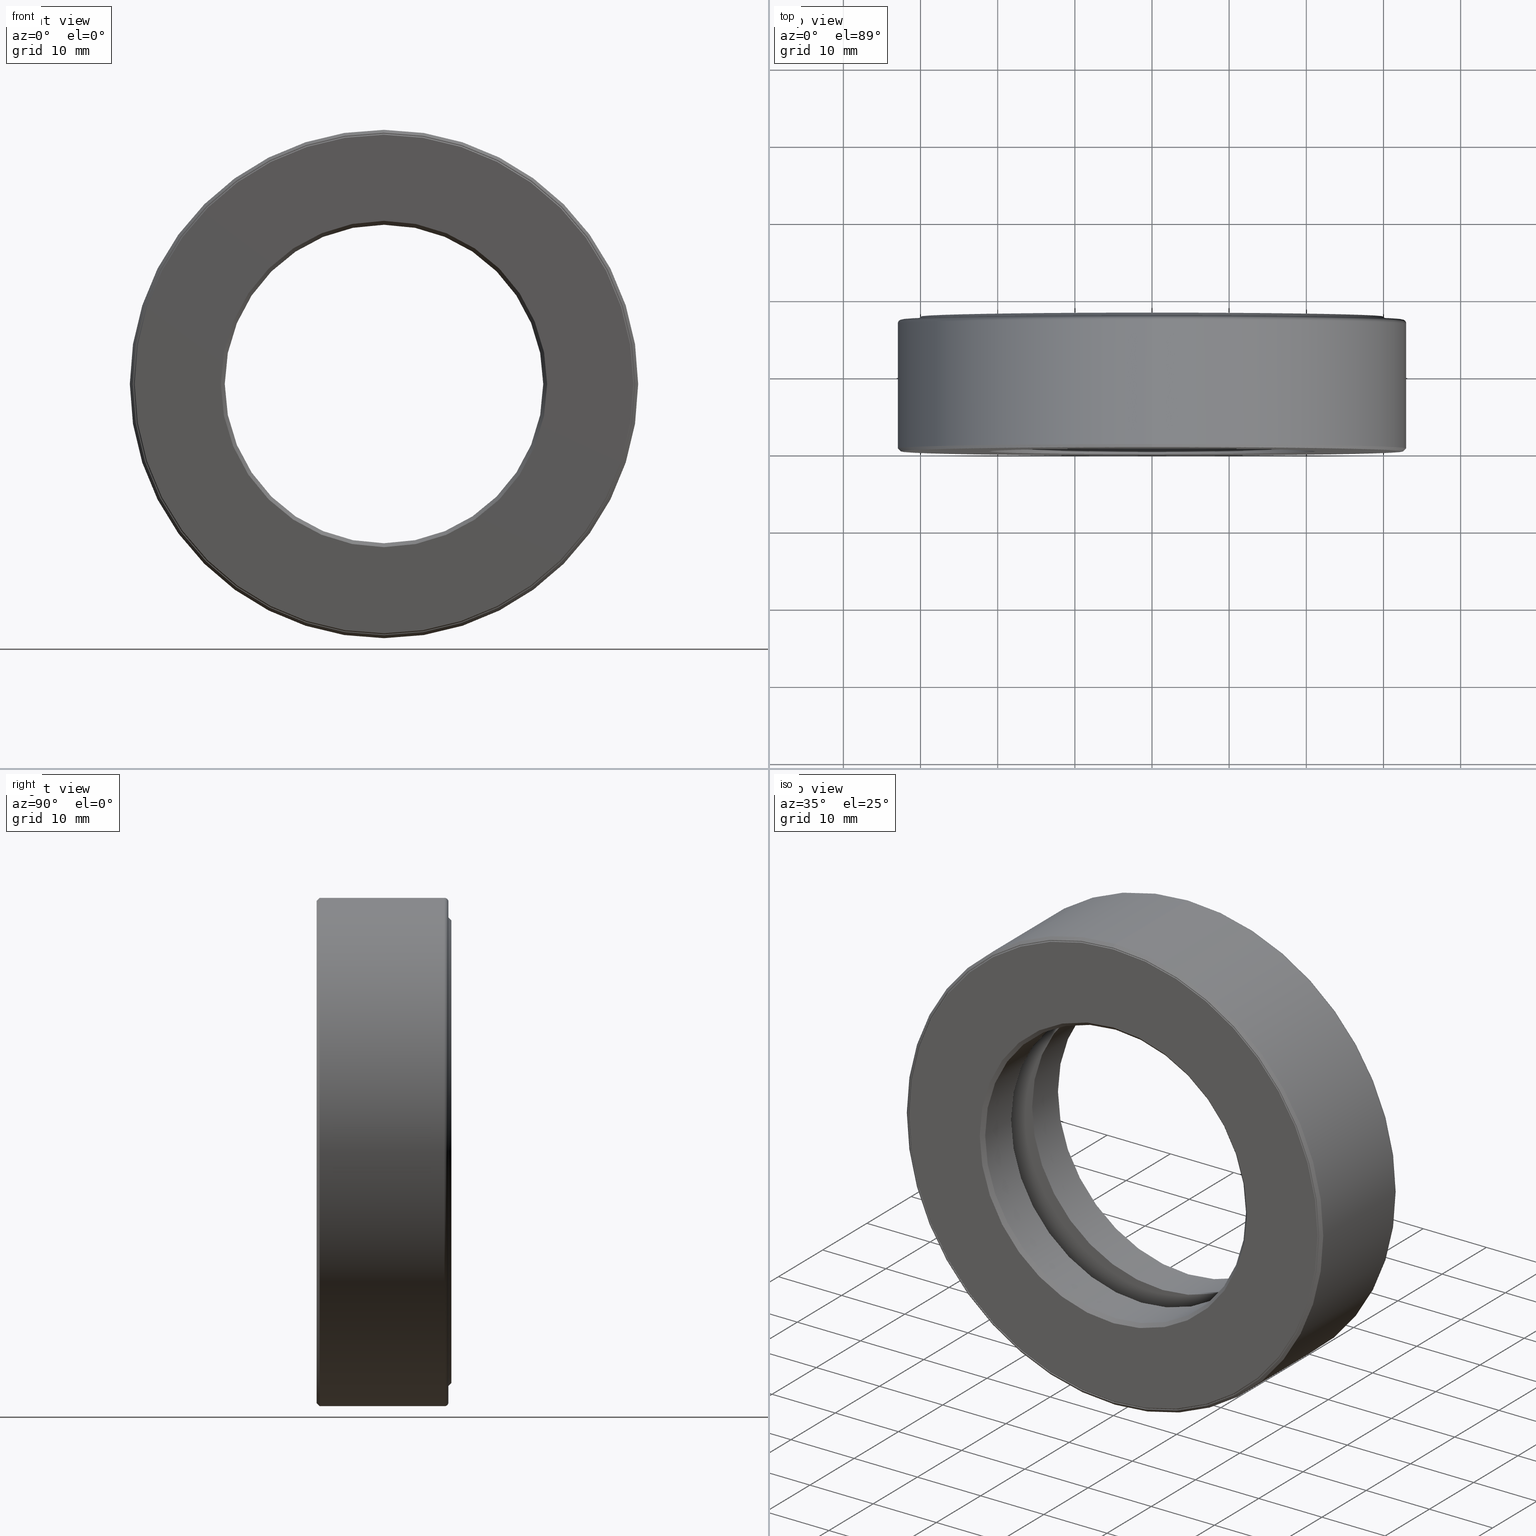
[diagram: canonical four-view strip — front | top / right | iso, engineering-drawing reading convention]
A machine part, canonical four-view strip (front | top / right | iso — engineering-drawing reading convention). The complete STEP part file that produces these views, byte-faithful:
ISO-10303-21;
HEADER;
FILE_DESCRIPTION (( 'STEP AP203' ),
    '1' );
FILE_NAME ('T-100-23.step',
    '2016-06-29T18:27:25',
    ( '' ),
    ( '' ),
    'SwSTEP 2.0',
    'SolidWorks 2016',
    '' );
FILE_SCHEMA (( 'CONFIG_CONTROL_DESIGN' ));
ENDSEC;

DATA;
#1 = AXIS2_PLACEMENT_3D ( 'NONE', #484, #485, #201 ) ;
#2 = DIRECTION ( 'NONE',  ( 0.0000000000000000000, 0.0000000000000000000, 1.000000000000000000 ) ) ;
#3 = PERSON_AND_ORGANIZATION ( #524, #192 ) ;
#4 = VERTEX_POINT ( 'NONE', #153 ) ;
#5 = CONICAL_SURFACE ( 'NONE', #276, 0.8125000000000001100, 0.7853981633974482800 ) ;
#6 = CARTESIAN_POINT ( 'NONE',  ( 0.0000000000000000000, 0.0000000000000000000, 0.0000000000000000000 ) ) ;
#7 = ORIENTED_EDGE ( 'NONE', *, *, #89, .T. ) ;
#8 = AXIS2_PLACEMENT_3D ( 'NONE', #452, #72, #394 ) ;
#9 = DIRECTION ( 'NONE',  ( 0.0000000000000000000, 0.0000000000000000000, 1.000000000000000000 ) ) ;
#10 = CARTESIAN_POINT ( 'NONE',  ( 1.111625000000000100, 0.3437500000000000000, -7.762435886582998400E-015 ) ) ;
#11 = FACE_OUTER_BOUND ( 'NONE', #507, .T. ) ;
#12 = ORIENTED_EDGE ( 'NONE', *, *, #439, .F. ) ;
#13 = CARTESIAN_POINT ( 'NONE',  ( 0.0000000000000000000, 0.0000000000000000000, 0.0000000000000000000 ) ) ;
#14 = ORIENTED_EDGE ( 'NONE', *, *, #286, .T. ) ;
#15 = PERSON_AND_ORGANIZATION_ROLE ( 'design_supplier' ) ;
#16 = EDGE_CURVE ( 'NONE', #176, #176, #99, .T. ) ;
#17 = CARTESIAN_POINT ( 'NONE',  ( 0.0000000000000000000, 0.6524999999999997500, 1.276875000000000000 ) ) ;
#18 = APPROVAL_DATE_TIME ( #603, #388 ) ;
#19 = SHAPE_DEFINITION_REPRESENTATION ( #305, #595 ) ;
#20 = APPLICATION_CONTEXT ( 'configuration controlled 3d designs of mechanical parts and assemblies' ) ;
#21 = FACE_OUTER_BOUND ( 'NONE', #50, .T. ) ;
#22 = CARTESIAN_POINT ( 'NONE',  ( 3.881217943291499200E-015, 0.3437500000000000000, 1.111625000000000100 ) ) ;
#23 = ORIENTED_EDGE ( 'NONE', *, *, #107, .F. ) ;
#24 = DIRECTION ( 'NONE',  ( 0.0000000000000000000, 0.0000000000000000000, -1.000000000000000000 ) ) ;
#25 = CARTESIAN_POINT ( 'NONE',  ( 0.0000000000000000000, 0.4375000000000000000, 0.0000000000000000000 ) ) ;
#26 = FACE_OUTER_BOUND ( 'NONE', #217, .T. ) ;
#27 = EDGE_CURVE ( 'NONE', #537, #537, #337, .T. ) ;
#28 = CIRCLE ( 'NONE', #563, 1.269875000000000100 ) ;
#29 = ORIENTED_EDGE ( 'NONE', *, *, #411, .F. ) ;
#30 = DIRECTION ( 'NONE',  ( 0.0000000000000000000, -1.000000000000000000, 0.0000000000000000000 ) ) ;
#31 = MANIFOLD_SOLID_BREP ( 'Revolve3', #301 ) ;
#32 = DIRECTION ( 'NONE',  ( 0.0000000000000000000, -1.000000000000000000, 0.0000000000000000000 ) ) ;
#33 = ADVANCED_FACE ( 'NONE', ( #565, #586 ), #399, .F. ) ;
#34 = DATE_AND_TIME ( #204, #264 ) ;
#35 = VERTEX_POINT ( 'NONE', #71 ) ;
#36 = FACE_OUTER_BOUND ( 'NONE', #528, .T. ) ;
#37 = ORIENTED_EDGE ( 'NONE', *, *, #191, .F. ) ;
#38 = CARTESIAN_POINT ( 'NONE',  ( 0.0000000000000000000, -7.043045608665678100E-017, 0.0000000000000000000 ) ) ;
#39 = AXIS2_PLACEMENT_3D ( 'NONE', #284, #601, #324 ) ;
#40 = VERTEX_POINT ( 'NONE', #207 ) ;
#41 = CIRCLE ( 'NONE', #395, 0.8125000000000001100 ) ;
#42 = EDGE_LOOP ( 'NONE', ( #300 ) ) ;
#43 = EDGE_LOOP ( 'NONE', ( #23 ) ) ;
#44 = CARTESIAN_POINT ( 'NONE',  ( 0.0000000000000000000, 0.4375000000000000000, 0.0000000000000000000 ) ) ;
#45 = AXIS2_PLACEMENT_3D ( 'NONE', #511, #227, #553 ) ;
#46 = CALENDAR_DATE ( 2016, 29, 6 ) ;
#47 = DIRECTION ( 'NONE',  ( 0.0000000000000000000, 0.0000000000000000000, 1.000000000000000000 ) ) ;
#48 = FACE_OUTER_BOUND ( 'NONE', #122, .T. ) ;
#49 = EDGE_LOOP ( 'NONE', ( #288 ) ) ;
#50 = EDGE_LOOP ( 'NONE', ( #414 ) ) ;
#51 = CARTESIAN_POINT ( 'NONE',  ( 0.0000000000000000000, 0.0000000000000000000, 0.0000000000000000000 ) ) ;
#52 = CARTESIAN_POINT ( 'NONE',  ( 0.0000000000000000000, 0.02000000000000019800, 0.0000000000000000000 ) ) ;
#53 = VERTEX_POINT ( 'NONE', #578 ) ;
#54 = FACE_OUTER_BOUND ( 'NONE', #344, .T. ) ;
#55 = DIRECTION ( 'NONE',  ( -0.0000000000000000000, 1.000000000000000000, -0.0000000000000000000 ) ) ;
#56 = FACE_OUTER_BOUND ( 'NONE', #136, .T. ) ;
#57 = DIRECTION ( 'NONE',  ( 0.0000000000000000000, 0.0000000000000000000, 1.000000000000000000 ) ) ;
#58 = CARTESIAN_POINT ( 'NONE',  ( 0.0000000000000000000, 0.02000000000000019800, 0.8125000000000000000 ) ) ;
#59 = CARTESIAN_POINT ( 'NONE',  ( 0.0000000000000000000, 0.004999999999999950700, 1.276875000000000000 ) ) ;
#60 = PRODUCT_DEFINITION ( 'UNKNOWN', '', #277, #440 ) ;
#61 = PERSON_AND_ORGANIZATION ( #524, #192 ) ;
#62 = SPHERICAL_SURFACE ( 'NONE', #120, 0.1562500000000000000 ) ;
#63 = DIRECTION ( 'NONE',  ( -0.0000000000000000000, 1.000000000000000000, -0.0000000000000000000 ) ) ;
#64 = ORIENTED_EDGE ( 'NONE', *, *, #539, .F. ) ;
#65 = CARTESIAN_POINT ( 'NONE',  ( 0.0000000000000000000, 0.6875000000000000000, 0.0000000000000000000 ) ) ;
#66 = APPROVAL_ROLE ( '' ) ;
#67 = AXIS2_PLACEMENT_3D ( 'NONE', #306, #63, #385 ) ;
#68 = MANIFOLD_SOLID_BREP ( 'Revolve2[2]', #239 ) ;
#69 = DIRECTION ( 'NONE',  ( -3.491481338843134500E-015, 0.0000000000000000000, -1.000000000000000000 ) ) ;
#70 = ADVANCED_FACE ( 'NONE', ( #317, #135 ), #86, .T. ) ;
#71 = CARTESIAN_POINT ( 'NONE',  ( 0.0000000000000000000, 0.5995000000000001400, 1.269874999999999900 ) ) ;
#72 = DIRECTION ( 'NONE',  ( -0.0000000000000000000, 1.000000000000000000, -0.0000000000000000000 ) ) ;
#73 = AXIS2_PLACEMENT_3D ( 'NONE', #477, #55, #9 ) ;
#74 = FACE_OUTER_BOUND ( 'NONE', #43, .T. ) ;
#75 = CARTESIAN_POINT ( 'NONE',  ( -4.902814058981088200E-017, 0.2499999999999999200, 0.0000000000000000000 ) ) ;
#76 = CLOSED_SHELL ( 'NONE', ( #118 ) ) ;
#77 = ADVANCED_FACE ( 'NONE', ( ), #62, .T. ) ;
#78 = CARTESIAN_POINT ( 'NONE',  ( -1.164365382987449700E-014, 0.3437500000000000000, -1.111625000000000100 ) ) ;
#79 = AXIS2_PLACEMENT_3D ( 'NONE', #115, #349, #582 ) ;
#80 = EDGE_LOOP ( 'NONE', ( #370 ) ) ;
#81 = CARTESIAN_POINT ( 'NONE',  ( 0.0000000000000000000, 0.4375000000000000000, 0.0000000000000000000 ) ) ;
#82 = EDGE_CURVE ( 'NONE', #53, #53, #425, .T. ) ;
#83 = COORDINATED_UNIVERSAL_TIME_OFFSET ( 5, 0, .BEHIND. ) ;
#84 = FACE_BOUND ( 'NONE', #605, .T. ) ;
#85 = SPHERICAL_SURFACE ( 'NONE', #365, 0.1562500000000000000 ) ;
#86 = CONICAL_SURFACE ( 'NONE', #262, 1.181875000000000000, 0.7853981633974482800 ) ;
#87 = CARTESIAN_POINT ( 'NONE',  ( 0.0000000000000000000, 0.0000000000000000000, 0.0000000000000000000 ) ) ;
#88 = CARTESIAN_POINT ( 'NONE',  ( -1.538755723098135700E-032, -7.007939281880947700E-017, 0.0000000000000000000 ) ) ;
#89 = EDGE_CURVE ( 'NONE', #257, #257, #432, .T. ) ;
#90 = VERTEX_POINT ( 'NONE', #253 ) ;
#91 = ORIENTED_EDGE ( 'NONE', *, *, #411, .T. ) ;
#92 = DIRECTION ( 'NONE',  ( 0.0000000000000000000, 0.0000000000000000000, 1.000000000000000000 ) ) ;
#93 = ORIENTED_EDGE ( 'NONE', *, *, #384, .T. ) ;
#94 =( GEOMETRIC_REPRESENTATION_CONTEXT ( 3 ) GLOBAL_UNCERTAINTY_ASSIGNED_CONTEXT ( ( #418 ) ) GLOBAL_UNIT_ASSIGNED_CONTEXT ( ( #106, #489, #203 ) ) REPRESENTATION_CONTEXT ( 'NONE', 'WORKASPACE' ) );
#95 = DIRECTION ( 'NONE',  ( 0.0000000000000000000, 0.0000000000000000000, 1.000000000000000000 ) ) ;
#96 = DIRECTION ( 'NONE',  ( 0.0000000000000000000, 0.0000000000000000000, 1.000000000000000000 ) ) ;
#97 = VERTEX_POINT ( 'NONE', #396 ) ;
#98 = FACE_BOUND ( 'NONE', #104, .T. ) ;
#99 = CIRCLE ( 'NONE', #8, 1.296875000000000000 ) ;
#100 = CARTESIAN_POINT ( 'NONE',  ( 0.0000000000000000000, -6.972832955096217300E-017, 0.0000000000000000000 ) ) ;
#101 = DIRECTION ( 'NONE',  ( -0.0000000000000000000, 1.000000000000000000, -0.0000000000000000000 ) ) ;
#102 = FACE_OUTER_BOUND ( 'NONE', #599, .T. ) ;
#103 = CARTESIAN_POINT ( 'NONE',  ( 0.0000000000000000000, 0.2499999999999998300, 1.276875000000000000 ) ) ;
#104 = EDGE_LOOP ( 'NONE', ( #346 ) ) ;
#105 = ORIENTED_EDGE ( 'NONE', *, *, #371, .T. ) ;
#106 =( CONVERSION_BASED_UNIT ( 'INCH', #140 ) LENGTH_UNIT ( ) NAMED_UNIT ( #406 ) );
#107 = EDGE_CURVE ( 'NONE', #334, #334, #551, .T. ) ;
#108 = CARTESIAN_POINT ( 'NONE',  ( 0.0000000000000000000, 0.4375000000000000000, 1.236625000000000100 ) ) ;
#109 = EDGE_CURVE ( 'NONE', #90, #90, #570, .T. ) ;
#110 = ADVANCED_FACE ( 'NONE', ( #310, #186 ), #165, .T. ) ;
#111 = PERSON_AND_ORGANIZATION_ROLE ( 'classification_officer' ) ;
#112 = VERTEX_POINT ( 'NONE', #17 ) ;
#113 = FACE_OUTER_BOUND ( 'NONE', #575, .T. ) ;
#114 = ORIENTED_EDGE ( 'NONE', *, *, #249, .T. ) ;
#115 = CARTESIAN_POINT ( 'NONE',  ( 0.0000000000000000000, 0.6724999999999998800, 0.0000000000000000000 ) ) ;
#116 = ADVANCED_FACE ( 'NONE', ( #422, #295 ), #545, .F. ) ;
#117 = DIRECTION ( 'NONE',  ( -0.0000000000000000000, 1.000000000000000000, -0.0000000000000000000 ) ) ;
#118 = ADVANCED_FACE ( 'NONE', ( ), #447, .T. ) ;
#119 = DIRECTION ( 'NONE',  ( 1.000000000000000000, 0.0000000000000000000, -1.047444401652940600E-014 ) ) ;
#120 = AXIS2_PLACEMENT_3D ( 'NONE', #78, #119, #256 ) ;
#121 = CYLINDRICAL_SURFACE ( 'NONE', #585, 1.276875000000000000 ) ;
#122 = EDGE_LOOP ( 'NONE', ( #29 ) ) ;
#123 = ORIENTED_EDGE ( 'NONE', *, *, #244, .T. ) ;
#124 = EDGE_CURVE ( 'NONE', #569, #569, #28, .T. ) ;
#125 = AXIS2_PLACEMENT_3D ( 'NONE', #13, #535, #255 ) ;
#126 = CARTESIAN_POINT ( 'NONE',  ( 0.0000000000000000000, 0.6724999999999998800, 0.0000000000000000000 ) ) ;
#127 = DIRECTION ( 'NONE',  ( -0.0000000000000000000, 1.000000000000000000, -0.0000000000000000000 ) ) ;
#128 = COORDINATED_UNIVERSAL_TIME_OFFSET ( 5, 0, .BEHIND. ) ;
#129 = ORIENTED_EDGE ( 'NONE', *, *, #226, .T. ) ;
#130 = AXIS2_PLACEMENT_3D ( 'NONE', #561, #247, #199 ) ;
#131 = DIRECTION ( 'NONE',  ( 0.0000000000000000000, 0.0000000000000000000, 1.000000000000000000 ) ) ;
#132 = PERSON_AND_ORGANIZATION ( #524, #192 ) ;
#133 = PLANE ( 'NONE',  #130 ) ;
#134 = FACE_OUTER_BOUND ( 'NONE', #237, .T. ) ;
#135 = FACE_BOUND ( 'NONE', #231, .T. ) ;
#136 = EDGE_LOOP ( 'NONE', ( #552 ) ) ;
#137 = DIRECTION ( 'NONE',  ( -0.0000000000000000000, 1.000000000000000000, -0.0000000000000000000 ) ) ;
#138 = CARTESIAN_POINT ( 'NONE',  ( 0.0000000000000000000, 0.2499999999999998900, 0.0000000000000000000 ) ) ;
#139 = COORDINATED_UNIVERSAL_TIME_OFFSET ( 5, 0, .BEHIND. ) ;
#140 = LENGTH_MEASURE_WITH_UNIT ( LENGTH_MEASURE( 0.02539999999999999900 ), #536 );
#141 = FACE_OUTER_BOUND ( 'NONE', #358, .T. ) ;
#142 = DIRECTION ( 'NONE',  ( -0.0000000000000000000, 1.000000000000000000, -0.0000000000000000000 ) ) ;
#143 = AXIS2_PLACEMENT_3D ( 'NONE', #510, #515, #361 ) ;
#144 = ORIENTED_EDGE ( 'NONE', *, *, #16, .F. ) ;
#145 = DIRECTION ( 'NONE',  ( -0.0000000000000000000, 1.000000000000000000, -0.0000000000000000000 ) ) ;
#146 = CARTESIAN_POINT ( 'NONE',  ( 0.0000000000000000000, -7.043045608665678100E-017, 0.0000000000000000000 ) ) ;
#147 = CARTESIAN_POINT ( 'NONE',  ( 0.0000000000000000000, -6.936332796413166200E-017, 0.0000000000000000000 ) ) ;
#148 = VERTEX_POINT ( 'NONE', #108 ) ;
#149 = FACE_BOUND ( 'NONE', #49, .T. ) ;
#150 = ORIENTED_EDGE ( 'NONE', *, *, #286, .F. ) ;
#151 = DIRECTION ( 'NONE',  ( 0.0000000000000000000, 0.0000000000000000000, 1.000000000000000000 ) ) ;
#152 = ORIENTED_EDGE ( 'NONE', *, *, #107, .T. ) ;
#153 = CARTESIAN_POINT ( 'NONE',  ( 0.0000000000000000000, 0.4375000000000000000, 0.8125000000000001100 ) ) ;
#154 = DIRECTION ( 'NONE',  ( 0.0000000000000000000, -1.000000000000000000, 0.0000000000000000000 ) ) ;
#155 = EDGE_CURVE ( 'NONE', #444, #444, #521, .T. ) ;
#156 = DATE_TIME_ROLE ( 'classification_date' ) ;
#157 = CC_DESIGN_APPROVAL ( #388, ( #60 ) ) ;
#158 = CALENDAR_DATE ( 2016, 29, 6 ) ;
#159 = VERTEX_POINT ( 'NONE', #103 ) ;
#160 = APPLICATION_CONTEXT ( 'configuration controlled 3d designs of mechanical parts and assemblies' ) ;
#161 = FACE_OUTER_BOUND ( 'NONE', #209, .T. ) ;
#162 = EDGE_LOOP ( 'NONE', ( #538 ) ) ;
#163 = APPROVAL_ROLE ( '' ) ;
#164 = CC_DESIGN_PERSON_AND_ORGANIZATION_ASSIGNMENT ( #61, #492, ( #470 ) ) ;
#165 = PLANE ( 'NONE',  #219 ) ;
#166 = ADVANCED_FACE ( 'NONE', ( #193, #267 ), #174, .F. ) ;
#167 = AXIS2_PLACEMENT_3D ( 'NONE', #525, #242, #568 ) ;
#168 = DIRECTION ( 'NONE',  ( 0.0000000000000000000, 0.0000000000000000000, 1.000000000000000000 ) ) ;
#169 = TOROIDAL_SURFACE ( 'NONE', #67, 1.111625000000000100, 0.1562499999999999200 ) ;
#170 = TOROIDAL_SURFACE ( 'NONE', #241, 1.276875000000000000, 0.02000000000000005900 ) ;
#171 = ORIENTED_EDGE ( 'NONE', *, *, #109, .T. ) ;
#172 = ORIENTED_EDGE ( 'NONE', *, *, #155, .F. ) ;
#173 = DIRECTION ( 'NONE',  ( 0.0000000000000000000, -1.000000000000000000, 0.0000000000000000000 ) ) ;
#174 = PLANE ( 'NONE',  #408 ) ;
#175 = AXIS2_PLACEMENT_3D ( 'NONE', #272, #460, #182 ) ;
#176 = VERTEX_POINT ( 'NONE', #441 ) ;
#177 = EDGE_LOOP ( 'NONE', ( #129 ) ) ;
#178 = EDGE_LOOP ( 'NONE', ( #105 ) ) ;
#179 = ADVANCED_FACE ( 'NONE', ( #56, #54 ), #294, .F. ) ;
#180 = CARTESIAN_POINT ( 'NONE',  ( 0.0000000000000000000, 0.6524999999999997500, 0.0000000000000000000 ) ) ;
#181 = AXIS2_PLACEMENT_3D ( 'NONE', #450, #494, #398 ) ;
#182 = DIRECTION ( 'NONE',  ( 0.0000000000000000000, 0.0000000000000000000, 1.000000000000000000 ) ) ;
#183 = CARTESIAN_POINT ( 'NONE',  ( 0.0000000000000000000, 0.6674999999999997600, 0.0000000000000000000 ) ) ;
#184 = FACE_OUTER_BOUND ( 'NONE', #377, .T. ) ;
#185 = CIRCLE ( 'NONE', #73, 1.269874999999999900 ) ;
#186 = FACE_OUTER_BOUND ( 'NONE', #80, .T. ) ;
#187 = DIRECTION ( 'NONE',  ( 0.0000000000000000000, 0.0000000000000000000, 1.000000000000000000 ) ) ;
#188 = AXIS2_PLACEMENT_3D ( 'NONE', #22, #503, #69 ) ;
#189 = DIRECTION ( 'NONE',  ( 0.0000000000000000000, 0.0000000000000000000, 1.000000000000000000 ) ) ;
#190 = CARTESIAN_POINT ( 'NONE',  ( 0.0000000000000000000, 0.2499999999999999200, 0.0000000000000000000 ) ) ;
#191 = EDGE_CURVE ( 'NONE', #112, #112, #280, .T. ) ;
#192 = ORGANIZATION ( 'UNSPECIFIED', 'UNSPECIFIED', '' ) ;
#193 = FACE_BOUND ( 'NONE', #330, .T. ) ;
#194 = EDGE_LOOP ( 'NONE', ( #366 ) ) ;
#195 = DIRECTION ( 'NONE',  ( -0.0000000000000000000, 1.000000000000000000, -0.0000000000000000000 ) ) ;
#196 = DIRECTION ( 'NONE',  ( 0.0000000000000000000, 0.0000000000000000000, 1.000000000000000000 ) ) ;
#197 = VERTEX_POINT ( 'NONE', #202 ) ;
#198 = FACE_OUTER_BOUND ( 'NONE', #483, .T. ) ;
#199 = DIRECTION ( 'NONE',  ( 0.0000000000000000000, 0.0000000000000000000, 1.000000000000000000 ) ) ;
#200 = ORIENTED_EDGE ( 'NONE', *, *, #16, .T. ) ;
#201 = DIRECTION ( 'NONE',  ( 0.0000000000000000000, 0.0000000000000000000, 1.000000000000000000 ) ) ;
#202 = CARTESIAN_POINT ( 'NONE',  ( 0.0000000000000000000, 0.0000000000000000000, 0.8325000000000002400 ) ) ;
#203 =( NAMED_UNIT ( * ) SI_UNIT ( $, .STERADIAN. ) SOLID_ANGLE_UNIT ( ) );
#204 = CALENDAR_DATE ( 2016, 29, 6 ) ;
#205 = FACE_OUTER_BOUND ( 'NONE', #517, .T. ) ;
#206 = ORIENTED_EDGE ( 'NONE', *, *, #226, .F. ) ;
#207 = CARTESIAN_POINT ( 'NONE',  ( 0.0000000000000000000, 0.2499999999999998900, 0.9866250000000003100 ) ) ;
#208 = AXIS2_PLACEMENT_3D ( 'NONE', #81, #32, #270 ) ;
#209 = EDGE_LOOP ( 'NONE', ( #427 ) ) ;
#210 = CARTESIAN_POINT ( 'NONE',  ( 0.0000000000000000000, 0.6674999999999997600, 0.8125000000000001100 ) ) ;
#211 = DIRECTION ( 'NONE',  ( 0.0000000000000000000, -1.000000000000000000, 0.0000000000000000000 ) ) ;
#212 = AXIS2_PLACEMENT_3D ( 'NONE', #38, #409, #458 ) ;
#213 = FACE_OUTER_BOUND ( 'NONE', #251, .T. ) ;
#214 = MANIFOLD_SOLID_BREP ( 'Revolve2[1]', #250 ) ;
#215 = FACE_OUTER_BOUND ( 'NONE', #498, .T. ) ;
#216 = DIRECTION ( 'NONE',  ( 0.0000000000000000000, 0.0000000000000000000, 1.000000000000000000 ) ) ;
#217 = EDGE_LOOP ( 'NONE', ( #7 ) ) ;
#218 = DIRECTION ( 'NONE',  ( -0.0000000000000000000, 1.000000000000000000, -0.0000000000000000000 ) ) ;
#219 = AXIS2_PLACEMENT_3D ( 'NONE', #407, #588, #541 ) ;
#220 = DIRECTION ( 'NONE',  ( 0.0000000000000000000, 0.0000000000000000000, 1.000000000000000000 ) ) ;
#221 = CIRCLE ( 'NONE', #333, 1.236625000000000100 ) ;
#222 = ADVANCED_FACE ( 'NONE', ( #149, #36 ), #455, .T. ) ;
#223 = ORIENTED_EDGE ( 'NONE', *, *, #191, .T. ) ;
#224 = EDGE_LOOP ( 'NONE', ( #465 ) ) ;
#225 = DIRECTION ( 'NONE',  ( 0.0000000000000000000, 0.0000000000000000000, 1.000000000000000000 ) ) ;
#226 = EDGE_CURVE ( 'NONE', #573, #573, #584, .T. ) ;
#227 = DIRECTION ( 'NONE',  ( -0.0000000000000000000, 1.000000000000000000, -0.0000000000000000000 ) ) ;
#228 = DIRECTION ( 'NONE',  ( 0.0000000000000000000, 0.0000000000000000000, 1.000000000000000000 ) ) ;
#229 = CONICAL_SURFACE ( 'NONE', #397, 1.271874999999999900, 0.7853981633974547200 ) ;
#230 = CIRCLE ( 'NONE', #39, 0.8325000000000003500 ) ;
#231 = EDGE_LOOP ( 'NONE', ( #559 ) ) ;
#232 = DIRECTION ( 'NONE',  ( -0.0000000000000000000, 1.000000000000000000, 0.0000000000000000000 ) ) ;
#233 = AXIS2_PLACEMENT_3D ( 'NONE', #146, #101, #375 ) ;
#234 = DIRECTION ( 'NONE',  ( 0.0000000000000000000, 0.0000000000000000000, -1.000000000000000000 ) ) ;
#235 = DIRECTION ( 'NONE',  ( 0.0000000000000000000, 0.0000000000000000000, 1.000000000000000000 ) ) ;
#236 = DATE_AND_TIME ( #374, #520 ) ;
#237 = EDGE_LOOP ( 'NONE', ( #12 ) ) ;
#238 = CARTESIAN_POINT ( 'NONE',  ( 0.0000000000000000000, 0.6524999999999997500, 0.0000000000000000000 ) ) ;
#239 = CLOSED_SHELL ( 'NONE', ( #110, #548, #222, #446, #303, #413, #70, #542 ) ) ;
#240 = DIRECTION ( 'NONE',  ( -0.0000000000000000000, 1.000000000000000000, -0.0000000000000000000 ) ) ;
#241 = AXIS2_PLACEMENT_3D ( 'NONE', #417, #518, #225 ) ;
#242 = DIRECTION ( 'NONE',  ( -0.0000000000000000000, 1.000000000000000000, -0.0000000000000000000 ) ) ;
#243 = DIRECTION ( 'NONE',  ( 0.0000000000000000000, 0.0000000000000000000, -1.000000000000000000 ) ) ;
#244 = EDGE_CURVE ( 'NONE', #564, #564, #335, .T. ) ;
#245 = CYLINDRICAL_SURFACE ( 'NONE', #593, 0.8125000000000001100 ) ;
#246 = ORIENTED_EDGE ( 'NONE', *, *, #400, .F. ) ;
#247 = DIRECTION ( 'NONE',  ( -0.0000000000000000000, 1.000000000000000000, 0.0000000000000000000 ) ) ;
#248 = FACE_BOUND ( 'NONE', #177, .T. ) ;
#249 = EDGE_CURVE ( 'NONE', #412, #412, #364, .T. ) ;
#250 = CLOSED_SHELL ( 'NONE', ( #451, #116, #179, #312, #269, #166, #263, #352, #443, #355, #362, #596, #453, #502, #308, #33 ) ) ;
#251 = EDGE_LOOP ( 'NONE', ( #64 ) ) ;
#252 = MECHANICAL_CONTEXT ( 'NONE', #160, 'mechanical' ) ;
#253 = CARTESIAN_POINT ( 'NONE',  ( 0.0000000000000000000, 0.4375000000000000000, 0.9866250000000003100 ) ) ;
#254 = CC_DESIGN_PERSON_AND_ORGANIZATION_ASSIGNMENT ( #487, #340, ( #277 ) ) ;
#255 = DIRECTION ( 'NONE',  ( 1.000000000000000000, 0.0000000000000000000, 0.0000000000000000000 ) ) ;
#256 = DIRECTION ( 'NONE',  ( 1.047444401652940600E-014, 0.0000000000000000000, 1.000000000000000000 ) ) ;
#257 = VERTEX_POINT ( 'NONE', #350 ) ;
#258 = CIRCLE ( 'NONE', #167, 0.8125000000000001100 ) ;
#259 = EDGE_LOOP ( 'NONE', ( #91 ) ) ;
#260 = DIRECTION ( 'NONE',  ( -0.0000000000000000000, 1.000000000000000000, -0.0000000000000000000 ) ) ;
#261 = CARTESIAN_POINT ( 'NONE',  ( 0.0000000000000000000, 0.0000000000000000000, 0.0000000000000000000 ) ) ;
#262 = AXIS2_PLACEMENT_3D ( 'NONE', #65, #154, #24 ) ;
#263 = ADVANCED_FACE ( 'NONE', ( #102, #113 ), #170, .T. ) ;
#264 = LOCAL_TIME ( 14, 27, 25.00000000000000000, #327 ) ;
#265 = FACE_BOUND ( 'NONE', #405, .T. ) ;
#266 = CARTESIAN_POINT ( 'NONE',  ( 0.0000000000000000000, 0.02000000000000019800, 0.0000000000000000000 ) ) ;
#267 = FACE_OUTER_BOUND ( 'NONE', #268, .T. ) ;
#268 = EDGE_LOOP ( 'NONE', ( #416 ) ) ;
#269 = ADVANCED_FACE ( 'NONE', ( #590, #26 ), #527, .F. ) ;
#270 = DIRECTION ( 'NONE',  ( 0.0000000000000000000, -0.0000000000000000000, -1.000000000000000000 ) ) ;
#271 = AXIS2_PLACEMENT_3D ( 'NONE', #183, #283, #187 ) ;
#272 = CARTESIAN_POINT ( 'NONE',  ( 0.0000000000000000000, 0.0000000000000000000, 0.0000000000000000000 ) ) ;
#273 = FACE_OUTER_BOUND ( 'NONE', #523, .T. ) ;
#274 = EDGE_LOOP ( 'NONE', ( #123 ) ) ;
#275 = CARTESIAN_POINT ( 'NONE',  ( 0.0000000000000000000, 0.004999999999999950700, 0.0000000000000000000 ) ) ;
#276 = AXIS2_PLACEMENT_3D ( 'NONE', #325, #373, #560 ) ;
#277 = PRODUCT_DEFINITION_FORMATION_WITH_SPECIFIED_SOURCE ( 'ANY', '', #470, .NOT_KNOWN. ) ;
#278 = CYLINDRICAL_SURFACE ( 'NONE', #360, 1.269875000000000100 ) ;
#279 = DIRECTION ( 'NONE',  ( -0.0000000000000000000, 1.000000000000000000, -0.0000000000000000000 ) ) ;
#280 = CIRCLE ( 'NONE', #434, 1.276875000000000000 ) ;
#281 = EDGE_LOOP ( 'NONE', ( #488 ) ) ;
#282 = EDGE_LOOP ( 'NONE', ( #171 ) ) ;
#283 = DIRECTION ( 'NONE',  ( -0.0000000000000000000, 1.000000000000000000, -0.0000000000000000000 ) ) ;
#284 = CARTESIAN_POINT ( 'NONE',  ( 0.0000000000000000000, 0.6875000000000000000, 0.0000000000000000000 ) ) ;
#285 = DIRECTION ( 'NONE',  ( -0.0000000000000000000, 1.000000000000000000, 0.0000000000000000000 ) ) ;
#286 = EDGE_CURVE ( 'NONE', #320, #320, #472, .T. ) ;
#287 = SECURITY_CLASSIFICATION ( '', '', #436 ) ;
#288 = ORIENTED_EDGE ( 'NONE', *, *, #439, .T. ) ;
#289 = ORIENTED_EDGE ( 'NONE', *, *, #400, .T. ) ;
#290 = CC_DESIGN_PERSON_AND_ORGANIZATION_ASSIGNMENT ( #469, #577, ( #60 ) ) ;
#291 = DIRECTION ( 'NONE',  ( -0.0000000000000000000, 1.000000000000000000, -0.0000000000000000000 ) ) ;
#292 = DIRECTION ( 'NONE',  ( -1.000000000000000000, 0.0000000000000000000, 6.982962677686269100E-015 ) ) ;
#293 = AXIS2_PLACEMENT_3D ( 'NONE', #266, #117, #302 ) ;
#294 = CYLINDRICAL_SURFACE ( 'NONE', #314, 1.276875000000000000 ) ;
#295 = FACE_OUTER_BOUND ( 'NONE', #42, .T. ) ;
#296 = APPROVAL_STATUS ( 'not_yet_approved' ) ;
#297 = APPROVAL_STATUS ( 'not_yet_approved' ) ;
#298 = CIRCLE ( 'NONE', #459, 0.8325000000000002400 ) ;
#299 = AXIS2_PLACEMENT_3D ( 'NONE', #25, #505, #168 ) ;
#300 = ORIENTED_EDGE ( 'NONE', *, *, #357, .T. ) ;
#301 = CLOSED_SHELL ( 'NONE', ( #315 ) ) ;
#302 = DIRECTION ( 'NONE',  ( 0.0000000000000000000, 0.0000000000000000000, 1.000000000000000000 ) ) ;
#303 = ADVANCED_FACE ( 'NONE', ( #381, #265 ), #5, .F. ) ;
#304 = AXIS2_PLACEMENT_3D ( 'NONE', #419, #285, #467 ) ;
#305 = PRODUCT_DEFINITION_SHAPE ( 'NONE', 'NONE',  #60 ) ;
#306 = CARTESIAN_POINT ( 'NONE',  ( 0.0000000000000000000, 0.3437500000000000000, 0.0000000000000000000 ) ) ;
#307 = CC_DESIGN_APPROVAL ( #482, ( #277 ) ) ;
#308 = ADVANCED_FACE ( 'NONE', ( #74, #11 ), #245, .F. ) ;
#309 = VERTEX_POINT ( 'NONE', #491 ) ;
#310 = FACE_BOUND ( 'NONE', #404, .T. ) ;
#311 = DIRECTION ( 'NONE',  ( 0.0000000000000000000, 0.0000000000000000000, 1.000000000000000000 ) ) ;
#312 = ADVANCED_FACE ( 'NONE', ( #215, #343 ), #423, .F. ) ;
#313 = CARTESIAN_POINT ( 'NONE',  ( 0.0000000000000000000, 0.6724999999999998800, 0.0000000000000000000 ) ) ;
#314 = AXIS2_PLACEMENT_3D ( 'NONE', #261, #260, #220 ) ;
#315 = ADVANCED_FACE ( 'NONE', ( ), #85, .T. ) ;
#316 = LOCAL_TIME ( 14, 27, 25.00000000000000000, #128 ) ;
#317 = FACE_OUTER_BOUND ( 'NONE', #259, .T. ) ;
#318 = EDGE_LOOP ( 'NONE', ( #594 ) ) ;
#319 = DIRECTION ( 'NONE',  ( -0.0000000000000000000, 1.000000000000000000, -0.0000000000000000000 ) ) ;
#320 = VERTEX_POINT ( 'NONE', #210 ) ;
#321 = CONICAL_SURFACE ( 'NONE', #233, 1.281875000000000100, 0.7853981633974505000 ) ;
#322 = ORIENTED_EDGE ( 'NONE', *, *, #82, .F. ) ;
#323 = CARTESIAN_POINT ( 'NONE',  ( 0.0000000000000000000, 0.2499999999999998300, 0.0000000000000000000 ) ) ;
#324 = DIRECTION ( 'NONE',  ( 0.0000000000000000000, 0.0000000000000000000, 1.000000000000000000 ) ) ;
#325 = CARTESIAN_POINT ( 'NONE',  ( 0.0000000000000000000, 0.6674999999999997600, 0.0000000000000000000 ) ) ;
#326 = EDGE_CURVE ( 'NONE', #148, #148, #221, .T. ) ;
#327 = COORDINATED_UNIVERSAL_TIME_OFFSET ( 5, 0, .BEHIND. ) ;
#328 = DIRECTION ( 'NONE',  ( -0.0000000000000000000, 1.000000000000000000, -0.0000000000000000000 ) ) ;
#329 = ORIENTED_EDGE ( 'NONE', *, *, #509, .F. ) ;
#330 = EDGE_LOOP ( 'NONE', ( #457 ) ) ;
#331 = CARTESIAN_POINT ( 'NONE',  ( 0.0000000000000000000, 0.0000000000000000000, 0.0000000000000000000 ) ) ;
#332 = AXIS2_PLACEMENT_3D ( 'NONE', #138, #428, #532 ) ;
#333 = AXIS2_PLACEMENT_3D ( 'NONE', #44, #279, #189 ) ;
#334 = VERTEX_POINT ( 'NONE', #58 ) ;
#335 = CIRCLE ( 'NONE', #45, 1.181875000000000000 ) ;
#336 = DIRECTION ( 'NONE',  ( -0.0000000000000000000, 1.000000000000000000, -0.0000000000000000000 ) ) ;
#337 = CIRCLE ( 'NONE', #181, 1.296875000000000000 ) ;
#338 = CARTESIAN_POINT ( 'NONE',  ( -2.074786441091253300E-032, -3.468166398206582500E-017, 0.0000000000000000000 ) ) ;
#339 = CARTESIAN_POINT ( 'NONE',  ( 0.0000000000000000000, 0.0000000000000000000, 0.0000000000000000000 ) ) ;
#340 = PERSON_AND_ORGANIZATION_ROLE ( 'creator' ) ;
#341 = AXIS2_PLACEMENT_3D ( 'NONE', #579, #30, #501 ) ;
#342 = PERSON_AND_ORGANIZATION ( #524, #192 ) ;
#343 = FACE_BOUND ( 'NONE', #178, .T. ) ;
#344 = EDGE_LOOP ( 'NONE', ( #223 ) ) ;
#345 = CARTESIAN_POINT ( 'NONE',  ( 0.0000000000000000000, 0.6875000000000000000, 0.8325000000000003500 ) ) ;
#346 = ORIENTED_EDGE ( 'NONE', *, *, #539, .T. ) ;
#347 = CARTESIAN_POINT ( 'NONE',  ( 0.0000000000000000000, 0.2499999999999998300, 1.236625000000000100 ) ) ;
#348 = DATE_TIME_ROLE ( 'creation_date' ) ;
#349 = DIRECTION ( 'NONE',  ( -0.0000000000000000000, 1.000000000000000000, -0.0000000000000000000 ) ) ;
#350 = CARTESIAN_POINT ( 'NONE',  ( 0.0000000000000000000, 0.6724999999999998800, 1.216875000000000200 ) ) ;
#351 = FACE_OUTER_BOUND ( 'NONE', #359, .T. ) ;
#352 = ADVANCED_FACE ( 'NONE', ( #273, #161 ), #506, .T. ) ;
#353 = ORIENTED_EDGE ( 'NONE', *, *, #519, .F. ) ;
#354 = AXIS2_PLACEMENT_3D ( 'NONE', #481, #336, #57 ) ;
#355 = ADVANCED_FACE ( 'NONE', ( #598, #369 ), #368, .F. ) ;
#356 = PERSON_AND_ORGANIZATION ( #524, #192 ) ;
#357 = EDGE_CURVE ( 'NONE', #159, #159, #402, .T. ) ;
#358 = EDGE_LOOP ( 'NONE', ( #114 ) ) ;
#359 = EDGE_LOOP ( 'NONE', ( #329 ) ) ;
#360 = AXIS2_PLACEMENT_3D ( 'NONE', #6, #195, #533 ) ;
#361 = DIRECTION ( 'NONE',  ( 0.0000000000000000000, 0.0000000000000000000, 1.000000000000000000 ) ) ;
#362 = ADVANCED_FACE ( 'NONE', ( #351, #141 ), #121, .F. ) ;
#363 = APPROVAL_PERSON_ORGANIZATION ( #3, #500, #163 ) ;
#364 = CIRCLE ( 'NONE', #473, 1.276875000000000000 ) ;
#365 = AXIS2_PLACEMENT_3D ( 'NONE', #466, #234, #604 ) ;
#366 = ORIENTED_EDGE ( 'NONE', *, *, #531, .F. ) ;
#367 = AXIS2_PLACEMENT_3D ( 'NONE', #10, #530, #292 ) ;
#368 = PLANE ( 'NONE',  #461 ) ;
#369 = FACE_BOUND ( 'NONE', #318, .T. ) ;
#370 = ORIENTED_EDGE ( 'NONE', *, *, #124, .F. ) ;
#371 = EDGE_CURVE ( 'NONE', #309, #309, #463, .T. ) ;
#372 = ORIENTED_EDGE ( 'NONE', *, *, #531, .T. ) ;
#373 = DIRECTION ( 'NONE',  ( -0.0000000000000000000, 1.000000000000000000, -0.0000000000000000000 ) ) ;
#374 = CALENDAR_DATE ( 2016, 29, 6 ) ;
#375 = DIRECTION ( 'NONE',  ( 0.0000000000000000000, 0.0000000000000000000, 1.000000000000000000 ) ) ;
#376 = APPROVAL_PERSON_ORGANIZATION ( #514, #388, #574 ) ;
#377 = EDGE_LOOP ( 'NONE', ( #508 ) ) ;
#378 = PLANE ( 'NONE',  #547 ) ;
#379 = AXIS2_PLACEMENT_3D ( 'NONE', #51, #291, #196 ) ;
#380 = APPROVAL_DATE_TIME ( #34, #482 ) ;
#381 = FACE_OUTER_BOUND ( 'NONE', #592, .T. ) ;
#382 = DIRECTION ( 'NONE',  ( 0.0000000000000000000, -1.000000000000000000, 0.0000000000000000000 ) ) ;
#383 = ORIENTED_EDGE ( 'NONE', *, *, #519, .T. ) ;
#384 = EDGE_CURVE ( 'NONE', #597, #597, #41, .T. ) ;
#385 = DIRECTION ( 'NONE',  ( 0.0000000000000000000, 0.0000000000000000000, 1.000000000000000000 ) ) ;
#386 = APPLICATION_PROTOCOL_DEFINITION ( 'international standard', 'config_control_design', 1994, #160 ) ;
#387 = CARTESIAN_POINT ( 'NONE',  ( 0.0000000000000000000, 0.01499999999999984000, 1.296875000000000000 ) ) ;
#388 = APPROVAL ( #296, 'UNSPECIFIED' ) ;
#389 = DATE_AND_TIME ( #46, #495 ) ;
#390 = CIRCLE ( 'NONE', #1, 1.271874999999999900 ) ;
#391 = TOROIDAL_SURFACE ( 'NONE', #354, 1.111625000000000100, 0.1562500000000000000 ) ;
#392 = CARTESIAN_POINT ( 'NONE',  ( 0.0000000000000000000, -6.972832955096217300E-017, 1.276875000000000000 ) ) ;
#393 = ORIENTED_EDGE ( 'NONE', *, *, #249, .F. ) ;
#394 = DIRECTION ( 'NONE',  ( 0.0000000000000000000, 0.0000000000000000000, 1.000000000000000000 ) ) ;
#395 = AXIS2_PLACEMENT_3D ( 'NONE', #190, #240, #131 ) ;
#396 = CARTESIAN_POINT ( 'NONE',  ( 0.0000000000000000000, -6.936332796413166200E-017, 1.271874999999999900 ) ) ;
#397 = AXIS2_PLACEMENT_3D ( 'NONE', #147, #142, #151 ) ;
#398 = DIRECTION ( 'NONE',  ( 0.0000000000000000000, 0.0000000000000000000, 1.000000000000000000 ) ) ;
#399 = PLANE ( 'NONE',  #499 ) ;
#400 = EDGE_CURVE ( 'NONE', #543, #543, #230, .T. ) ;
#401 = FACE_BOUND ( 'NONE', #534, .T. ) ;
#402 = CIRCLE ( 'NONE', #555, 1.276875000000000000 ) ;
#403 = DIRECTION ( 'NONE',  ( 0.0000000000000000000, -0.0000000000000000000, -1.000000000000000000 ) ) ;
#404 = EDGE_LOOP ( 'NONE', ( #546 ) ) ;
#405 = EDGE_LOOP ( 'NONE', ( #150 ) ) ;
#406 = DIMENSIONAL_EXPONENTS ( 1.000000000000000000, 0.0000000000000000000, 0.0000000000000000000, 0.0000000000000000000, 0.0000000000000000000, 0.0000000000000000000, 0.0000000000000000000 ) ;
#407 = CARTESIAN_POINT ( 'NONE',  ( 0.0000000000000000000, 0.4375000000000000000, 0.0000000000000000000 ) ) ;
#408 = AXIS2_PLACEMENT_3D ( 'NONE', #126, #173, #549 ) ;
#409 = DIRECTION ( 'NONE',  ( -0.0000000000000000000, 1.000000000000000000, -0.0000000000000000000 ) ) ;
#410 = LOCAL_TIME ( 14, 27, 25.00000000000000000, #139 ) ;
#411 = EDGE_CURVE ( 'NONE', #35, #35, #185, .T. ) ;
#412 = VERTEX_POINT ( 'NONE', #59 ) ;
#413 = ADVANCED_FACE ( 'NONE', ( #544, #420 ), #133, .T. ) ;
#414 = ORIENTED_EDGE ( 'NONE', *, *, #155, .T. ) ;
#415 = CC_DESIGN_DATE_AND_TIME_ASSIGNMENT ( #512, #348, ( #60 ) ) ;
#416 = ORIENTED_EDGE ( 'NONE', *, *, #82, .T. ) ;
#417 = CARTESIAN_POINT ( 'NONE',  ( 0.0000000000000000000, 0.6524999999999997500, 0.0000000000000000000 ) ) ;
#418 = UNCERTAINTY_MEASURE_WITH_UNIT (LENGTH_MEASURE( 1.000000000000000100E-005 ), #106, 'distance_accuracy_value', 'NONE');
#419 = CARTESIAN_POINT ( 'NONE',  ( 0.0000000000000000000, 0.6524999999999997500, 0.0000000000000000000 ) ) ;
#420 = FACE_BOUND ( 'NONE', #474, .T. ) ;
#421 = AXIS2_PLACEMENT_3D ( 'NONE', #238, #522, #235 ) ;
#422 = FACE_BOUND ( 'NONE', #540, .T. ) ;
#423 = PLANE ( 'NONE',  #304 ) ;
#424 = SPHERICAL_SURFACE ( 'NONE', #367, 0.1562500000000000000 ) ;
#425 = CIRCLE ( 'NONE', #79, 1.276875000000000000 ) ;
#426 = CC_DESIGN_APPROVAL ( #500, ( #287 ) ) ;
#427 = ORIENTED_EDGE ( 'NONE', *, *, #27, .T. ) ;
#428 = DIRECTION ( 'NONE',  ( -0.0000000000000000000, 1.000000000000000000, -0.0000000000000000000 ) ) ;
#429 = AXIS2_PLACEMENT_3D ( 'NONE', #471, #137, #95 ) ;
#430 = DIRECTION ( 'NONE',  ( -0.0000000000000000000, 1.000000000000000000, 0.0000000000000000000 ) ) ;
#431 = CIRCLE ( 'NONE', #332, 0.9866250000000003100 ) ;
#432 = CIRCLE ( 'NONE', #602, 1.216875000000000200 ) ;
#433 = CARTESIAN_POINT ( 'NONE',  ( 0.0000000000000000000, -7.043045608665678100E-017, 1.281875000000000100 ) ) ;
#434 = AXIS2_PLACEMENT_3D ( 'NONE', #180, #127, #591 ) ;
#435 = VERTEX_POINT ( 'NONE', #392 ) ;
#436 = SECURITY_CLASSIFICATION_LEVEL ( 'unclassified' ) ;
#437 = EDGE_LOOP ( 'NONE', ( #372 ) ) ;
#438 = ORIENTED_EDGE ( 'NONE', *, *, #326, .F. ) ;
#439 = EDGE_CURVE ( 'NONE', #4, #4, #258, .T. ) ;
#440 = DESIGN_CONTEXT ( 'detailed design', #20, 'design' ) ;
#441 = CARTESIAN_POINT ( 'NONE',  ( 0.0000000000000000000, 0.6524999999999997500, 1.296875000000000000 ) ) ;
#442 = APPROVAL_STATUS ( 'not_yet_approved' ) ;
#443 = ADVANCED_FACE ( 'NONE', ( #516, #248 ), #321, .T. ) ;
#444 = VERTEX_POINT ( 'NONE', #347 ) ;
#445 = CYLINDRICAL_SURFACE ( 'NONE', #379, 0.8125000000000001100 ) ;
#446 = ADVANCED_FACE ( 'NONE', ( #198, #134 ), #445, .F. ) ;
#447 = SPHERICAL_SURFACE ( 'NONE', #188, 0.1562500000000000000 ) ;
#448 = MANIFOLD_SOLID_BREP ( 'BALLS[1]', #76 ) ;
#449 = AXIS2_PLACEMENT_3D ( 'NONE', #52, #382, #243 ) ;
#450 = CARTESIAN_POINT ( 'NONE',  ( 0.0000000000000000000, 0.01499999999999984000, 0.0000000000000000000 ) ) ;
#451 = ADVANCED_FACE ( 'NONE', ( #558, #21 ), #391, .F. ) ;
#452 = CARTESIAN_POINT ( 'NONE',  ( 0.0000000000000000000, 0.6524999999999997500, 0.0000000000000000000 ) ) ;
#453 = ADVANCED_FACE ( 'NONE', ( #205, #98 ), #378, .F. ) ;
#454 = COORDINATED_UNIVERSAL_TIME_OFFSET ( 5, 0, .BEHIND. ) ;
#455 = PLANE ( 'NONE',  #208 ) ;
#456 = CLOSED_SHELL ( 'NONE', ( #77 ) ) ;
#457 = ORIENTED_EDGE ( 'NONE', *, *, #89, .F. ) ;
#458 = DIRECTION ( 'NONE',  ( 0.0000000000000000000, 0.0000000000000000000, 1.000000000000000000 ) ) ;
#459 = AXIS2_PLACEMENT_3D ( 'NONE', #339, #145, #96 ) ;
#460 = DIRECTION ( 'NONE',  ( -0.0000000000000000000, 1.000000000000000000, -0.0000000000000000000 ) ) ;
#461 = AXIS2_PLACEMENT_3D ( 'NONE', #88, #232, #557 ) ;
#462 = FACE_OUTER_BOUND ( 'NONE', #576, .T. ) ;
#463 = CIRCLE ( 'NONE', #421, 1.216875000000000200 ) ;
#464 = CC_DESIGN_PERSON_AND_ORGANIZATION_ASSIGNMENT ( #342, #15, ( #277 ) ) ;
#465 = ORIENTED_EDGE ( 'NONE', *, *, #384, .F. ) ;
#466 = CARTESIAN_POINT ( 'NONE',  ( -1.111625000000000100, 0.3437500000000000000, 0.0000000000000000000 ) ) ;
#467 = DIRECTION ( 'NONE',  ( 0.0000000000000000000, 0.0000000000000000000, 1.000000000000000000 ) ) ;
#468 = MANIFOLD_SOLID_BREP ( 'BALLS[2]', #490 ) ;
#469 = PERSON_AND_ORGANIZATION ( #524, #192 ) ;
#470 = PRODUCT ( 'T-100-23', 'T-100-23', '', ( #252 ) ) ;
#471 = CARTESIAN_POINT ( 'NONE',  ( 0.0000000000000000000, 0.0000000000000000000, 0.0000000000000000000 ) ) ;
#472 = CIRCLE ( 'NONE', #271, 0.8125000000000001100 ) ;
#473 = AXIS2_PLACEMENT_3D ( 'NONE', #275, #319, #228 ) ;
#474 = EDGE_LOOP ( 'NONE', ( #246 ) ) ;
#475 = EDGE_LOOP ( 'NONE', ( #438 ) ) ;
#476 = DIRECTION ( 'NONE',  ( -0.0000000000000000000, 1.000000000000000000, -0.0000000000000000000 ) ) ;
#477 = CARTESIAN_POINT ( 'NONE',  ( 0.0000000000000000000, 0.5995000000000001400, 0.0000000000000000000 ) ) ;
#478 = DIRECTION ( 'NONE',  ( -0.0000000000000000000, 1.000000000000000000, -0.0000000000000000000 ) ) ;
#479 = APPROVAL_PERSON_ORGANIZATION ( #356, #482, #66 ) ;
#480 = FACE_OUTER_BOUND ( 'NONE', #282, .T. ) ;
#481 = CARTESIAN_POINT ( 'NONE',  ( 0.0000000000000000000, 0.3437500000000000000, 0.0000000000000000000 ) ) ;
#482 = APPROVAL ( #297, 'UNSPECIFIED' ) ;
#483 = EDGE_LOOP ( 'NONE', ( #14 ) ) ;
#484 = CARTESIAN_POINT ( 'NONE',  ( 0.0000000000000000000, -6.936332796413166200E-017, 0.0000000000000000000 ) ) ;
#485 = DIRECTION ( 'NONE',  ( -0.0000000000000000000, 1.000000000000000000, -0.0000000000000000000 ) ) ;
#486 = CARTESIAN_POINT ( 'NONE',  ( 0.0000000000000000000, 0.6875000000000000000, 1.181875000000000000 ) ) ;
#487 = PERSON_AND_ORGANIZATION ( #524, #192 ) ;
#488 = ORIENTED_EDGE ( 'NONE', *, *, #27, .F. ) ;
#489 =( NAMED_UNIT ( * ) PLANE_ANGLE_UNIT ( ) SI_UNIT ( $, .RADIAN. ) );
#490 = CLOSED_SHELL ( 'NONE', ( #504 ) ) ;
#491 = CARTESIAN_POINT ( 'NONE',  ( 0.0000000000000000000, 0.6524999999999997500, 1.216875000000000200 ) ) ;
#492 = PERSON_AND_ORGANIZATION_ROLE ( 'design_owner' ) ;
#493 = CC_DESIGN_PERSON_AND_ORGANIZATION_ASSIGNMENT ( #132, #111, ( #287 ) ) ;
#494 = DIRECTION ( 'NONE',  ( -0.0000000000000000000, 1.000000000000000000, -0.0000000000000000000 ) ) ;
#495 = LOCAL_TIME ( 14, 27, 25.00000000000000000, #83 ) ;
#496 = CARTESIAN_POINT ( 'NONE',  ( 0.0000000000000000000, 0.2499999999999999200, 0.8125000000000001100 ) ) ;
#497 = DIRECTION ( 'NONE',  ( -0.0000000000000000000, 1.000000000000000000, -0.0000000000000000000 ) ) ;
#498 = EDGE_LOOP ( 'NONE', ( #37 ) ) ;
#499 = AXIS2_PLACEMENT_3D ( 'NONE', #75, #211, #403 ) ;
#500 = APPROVAL ( #442, 'UNSPECIFIED' ) ;
#501 = DIRECTION ( 'NONE',  ( 0.0000000000000000000, -0.0000000000000000000, -1.000000000000000000 ) ) ;
#502 = ADVANCED_FACE ( 'NONE', ( #213, #84 ), #550, .F. ) ;
#503 = DIRECTION ( 'NONE',  ( -1.000000000000000000, 0.0000000000000000000, 3.491481338843134500E-015 ) ) ;
#504 = ADVANCED_FACE ( 'NONE', ( ), #424, .T. ) ;
#505 = DIRECTION ( 'NONE',  ( -0.0000000000000000000, 1.000000000000000000, -0.0000000000000000000 ) ) ;
#506 = CYLINDRICAL_SURFACE ( 'NONE', #429, 1.296875000000000000 ) ;
#507 = EDGE_LOOP ( 'NONE', ( #93 ) ) ;
#508 = ORIENTED_EDGE ( 'NONE', *, *, #124, .T. ) ;
#509 = EDGE_CURVE ( 'NONE', #435, #435, #556, .T. ) ;
#510 = CARTESIAN_POINT ( 'NONE',  ( 0.0000000000000000000, 0.2499999999999998300, 0.0000000000000000000 ) ) ;
#511 = CARTESIAN_POINT ( 'NONE',  ( 0.0000000000000000000, 0.6875000000000000000, 0.0000000000000000000 ) ) ;
#512 = DATE_AND_TIME ( #158, #410 ) ;
#513 = CC_DESIGN_SECURITY_CLASSIFICATION ( #287, ( #277 ) ) ;
#514 = PERSON_AND_ORGANIZATION ( #524, #192 ) ;
#515 = DIRECTION ( 'NONE',  ( -0.0000000000000000000, 1.000000000000000000, -0.0000000000000000000 ) ) ;
#516 = FACE_OUTER_BOUND ( 'NONE', #281, .T. ) ;
#517 = EDGE_LOOP ( 'NONE', ( #353 ) ) ;
#518 = DIRECTION ( 'NONE',  ( -0.0000000000000000000, 1.000000000000000000, -0.0000000000000000000 ) ) ;
#519 = EDGE_CURVE ( 'NONE', #97, #97, #390, .T. ) ;
#520 = LOCAL_TIME ( 14, 27, 25.00000000000000000, #454 ) ;
#521 = CIRCLE ( 'NONE', #143, 1.236625000000000100 ) ;
#522 = DIRECTION ( 'NONE',  ( -0.0000000000000000000, 1.000000000000000000, -0.0000000000000000000 ) ) ;
#523 = EDGE_LOOP ( 'NONE', ( #144 ) ) ;
#524 = PERSON ( 'UNSPECIFIED', 'UNSPECIFIED', 'UNSPECIFIED', ('UNSPECIFIED'), ('UNSPECIFIED'), ('UNSPECIFIED') ) ;
#525 = CARTESIAN_POINT ( 'NONE',  ( 0.0000000000000000000, 0.4375000000000000000, 0.0000000000000000000 ) ) ;
#526 = CC_DESIGN_DATE_AND_TIME_ASSIGNMENT ( #389, #156, ( #287 ) ) ;
#527 = CYLINDRICAL_SURFACE ( 'NONE', #175, 1.216875000000000200 ) ;
#528 = EDGE_LOOP ( 'NONE', ( #606 ) ) ;
#529 = MANIFOLD_SOLID_BREP ( 'BALLS[3]', #456 ) ;
#530 = DIRECTION ( 'NONE',  ( 6.982962677686269100E-015, -0.0000000000000000000, 1.000000000000000000 ) ) ;
#531 = EDGE_CURVE ( 'NONE', #40, #40, #431, .T. ) ;
#532 = DIRECTION ( 'NONE',  ( 0.0000000000000000000, 0.0000000000000000000, 1.000000000000000000 ) ) ;
#533 = DIRECTION ( 'NONE',  ( 0.0000000000000000000, 0.0000000000000000000, 1.000000000000000000 ) ) ;
#534 = EDGE_LOOP ( 'NONE', ( #383 ) ) ;
#535 = DIRECTION ( 'NONE',  ( 0.0000000000000000000, 0.0000000000000000000, 1.000000000000000000 ) ) ;
#536 =( LENGTH_UNIT ( ) NAMED_UNIT ( * ) SI_UNIT ( $, .METRE. ) );
#537 = VERTEX_POINT ( 'NONE', #387 ) ;
#538 = ORIENTED_EDGE ( 'NONE', *, *, #371, .F. ) ;
#539 = EDGE_CURVE ( 'NONE', #197, #197, #298, .T. ) ;
#540 = EDGE_LOOP ( 'NONE', ( #172 ) ) ;
#541 = DIRECTION ( 'NONE',  ( 0.0000000000000000000, -0.0000000000000000000, -1.000000000000000000 ) ) ;
#542 = ADVANCED_FACE ( 'NONE', ( #184, #48 ), #278, .T. ) ;
#543 = VERTEX_POINT ( 'NONE', #345 ) ;
#544 = FACE_OUTER_BOUND ( 'NONE', #274, .T. ) ;
#545 = PLANE ( 'NONE',  #341 ) ;
#546 = ORIENTED_EDGE ( 'NONE', *, *, #326, .T. ) ;
#547 = AXIS2_PLACEMENT_3D ( 'NONE', #338, #430, #567 ) ;
#548 = ADVANCED_FACE ( 'NONE', ( #480, #583 ), #169, .F. ) ;
#549 = DIRECTION ( 'NONE',  ( 0.0000000000000000000, -0.0000000000000000000, -1.000000000000000000 ) ) ;
#550 = CONICAL_SURFACE ( 'NONE', #449, 0.8125000000000000000, 0.7853981633974482800 ) ;
#551 = CIRCLE ( 'NONE', #293, 0.8125000000000000000 ) ;
#552 = ORIENTED_EDGE ( 'NONE', *, *, #357, .F. ) ;
#553 = DIRECTION ( 'NONE',  ( 0.0000000000000000000, 0.0000000000000000000, 1.000000000000000000 ) ) ;
#554 = PRODUCT_RELATED_PRODUCT_CATEGORY ( 'detail', '', ( #470 ) ) ;
#555 = AXIS2_PLACEMENT_3D ( 'NONE', #323, #562, #92 ) ;
#556 = CIRCLE ( 'NONE', #571, 1.276875000000000000 ) ;
#557 = DIRECTION ( 'NONE',  ( 0.0000000000000000000, 0.0000000000000000000, 1.000000000000000000 ) ) ;
#558 = FACE_OUTER_BOUND ( 'NONE', #194, .T. ) ;
#559 = ORIENTED_EDGE ( 'NONE', *, *, #244, .F. ) ;
#560 = DIRECTION ( 'NONE',  ( 0.0000000000000000000, 0.0000000000000000000, 1.000000000000000000 ) ) ;
#561 = CARTESIAN_POINT ( 'NONE',  ( 0.0000000000000000000, 0.6875000000000000000, 0.0000000000000000000 ) ) ;
#562 = DIRECTION ( 'NONE',  ( -0.0000000000000000000, 1.000000000000000000, -0.0000000000000000000 ) ) ;
#563 = AXIS2_PLACEMENT_3D ( 'NONE', #587, #218, #216 ) ;
#564 = VERTEX_POINT ( 'NONE', #486 ) ;
#565 = FACE_BOUND ( 'NONE', #224, .T. ) ;
#566 = EDGE_LOOP ( 'NONE', ( #206 ) ) ;
#567 = DIRECTION ( 'NONE',  ( 0.0000000000000000000, 0.0000000000000000000, 1.000000000000000000 ) ) ;
#568 = DIRECTION ( 'NONE',  ( 0.0000000000000000000, 0.0000000000000000000, 1.000000000000000000 ) ) ;
#569 = VERTEX_POINT ( 'NONE', #580 ) ;
#570 = CIRCLE ( 'NONE', #299, 0.9866250000000003100 ) ;
#571 = AXIS2_PLACEMENT_3D ( 'NONE', #100, #478, #2 ) ;
#572 = APPLICATION_PROTOCOL_DEFINITION ( 'international standard', 'config_control_design', 1994, #20 ) ;
#573 = VERTEX_POINT ( 'NONE', #433 ) ;
#574 = APPROVAL_ROLE ( '' ) ;
#575 = EDGE_LOOP ( 'NONE', ( #200 ) ) ;
#576 = EDGE_LOOP ( 'NONE', ( #393 ) ) ;
#577 = PERSON_AND_ORGANIZATION_ROLE ( 'creator' ) ;
#578 = CARTESIAN_POINT ( 'NONE',  ( 0.0000000000000000000, 0.6724999999999998800, 1.276875000000000000 ) ) ;
#579 = CARTESIAN_POINT ( 'NONE',  ( 0.0000000000000000000, 0.2499999999999998300, 0.0000000000000000000 ) ) ;
#580 = CARTESIAN_POINT ( 'NONE',  ( 0.0000000000000000000, 0.4375000000000000000, 1.269875000000000100 ) ) ;
#581 = APPROVAL_DATE_TIME ( #236, #500 ) ;
#582 = DIRECTION ( 'NONE',  ( 0.0000000000000000000, 0.0000000000000000000, 1.000000000000000000 ) ) ;
#583 = FACE_OUTER_BOUND ( 'NONE', #475, .T. ) ;
#584 = CIRCLE ( 'NONE', #212, 1.281875000000000100 ) ;
#585 = AXIS2_PLACEMENT_3D ( 'NONE', #331, #328, #600 ) ;
#586 = FACE_OUTER_BOUND ( 'NONE', #437, .T. ) ;
#587 = CARTESIAN_POINT ( 'NONE',  ( 0.0000000000000000000, 0.4375000000000000000, 0.0000000000000000000 ) ) ;
#588 = DIRECTION ( 'NONE',  ( 0.0000000000000000000, -1.000000000000000000, 0.0000000000000000000 ) ) ;
#589 = CALENDAR_DATE ( 2016, 29, 6 ) ;
#590 = FACE_OUTER_BOUND ( 'NONE', #162, .T. ) ;
#591 = DIRECTION ( 'NONE',  ( 0.0000000000000000000, 0.0000000000000000000, 1.000000000000000000 ) ) ;
#592 = EDGE_LOOP ( 'NONE', ( #289 ) ) ;
#593 = AXIS2_PLACEMENT_3D ( 'NONE', #87, #476, #47 ) ;
#594 = ORIENTED_EDGE ( 'NONE', *, *, #509, .T. ) ;
#595 = ADVANCED_BREP_SHAPE_REPRESENTATION ( 'T-100-23', ( #214, #68, #31, #448, #468, #529, #125 ), #94 ) ;
#596 = ADVANCED_FACE ( 'NONE', ( #462, #401 ), #229, .T. ) ;
#597 = VERTEX_POINT ( 'NONE', #496 ) ;
#598 = FACE_OUTER_BOUND ( 'NONE', #566, .T. ) ;
#599 = EDGE_LOOP ( 'NONE', ( #322 ) ) ;
#600 = DIRECTION ( 'NONE',  ( 0.0000000000000000000, 0.0000000000000000000, 1.000000000000000000 ) ) ;
#601 = DIRECTION ( 'NONE',  ( -0.0000000000000000000, 1.000000000000000000, -0.0000000000000000000 ) ) ;
#602 = AXIS2_PLACEMENT_3D ( 'NONE', #313, #497, #311 ) ;
#603 = DATE_AND_TIME ( #589, #316 ) ;
#604 = DIRECTION ( 'NONE',  ( 1.000000000000000000, 0.0000000000000000000, 0.0000000000000000000 ) ) ;
#605 = EDGE_LOOP ( 'NONE', ( #152 ) ) ;
#606 = ORIENTED_EDGE ( 'NONE', *, *, #109, .F. ) ;
ENDSEC;
END-ISO-10303-21;
